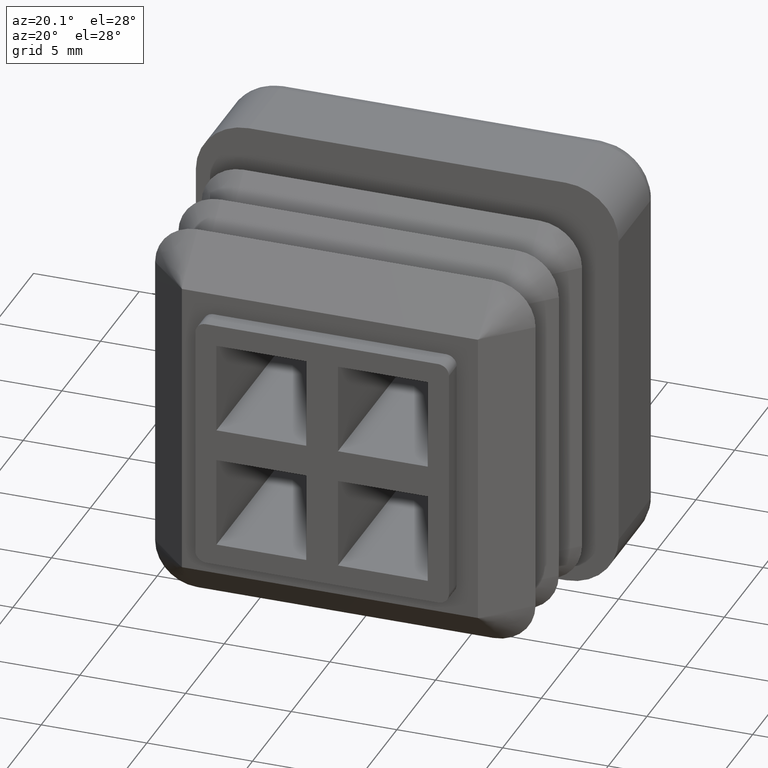
[diagram: clean part render]
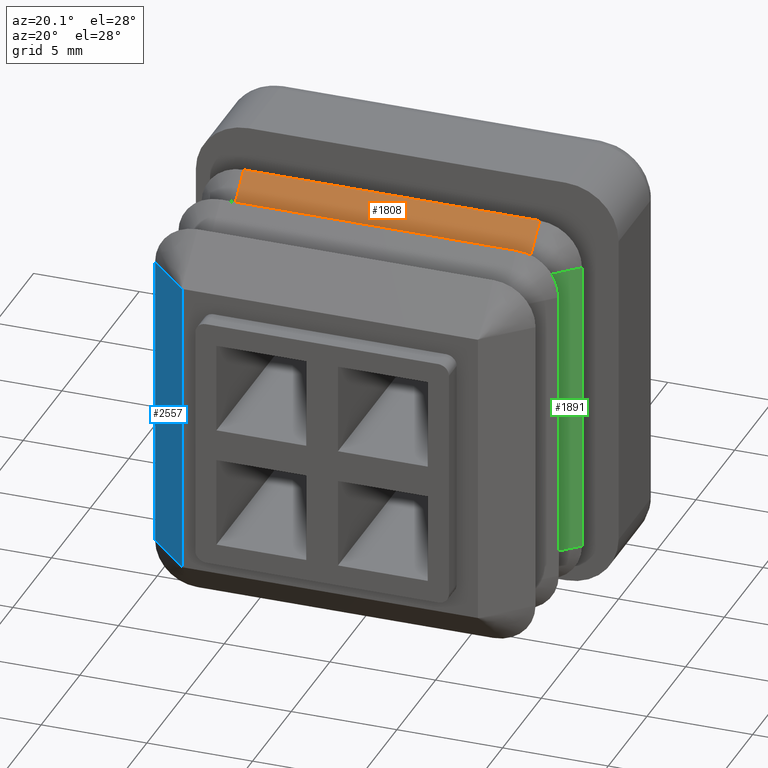
[diagram: same view with three faces highlighted in distinct colors, each labeled with its STEP entity id]
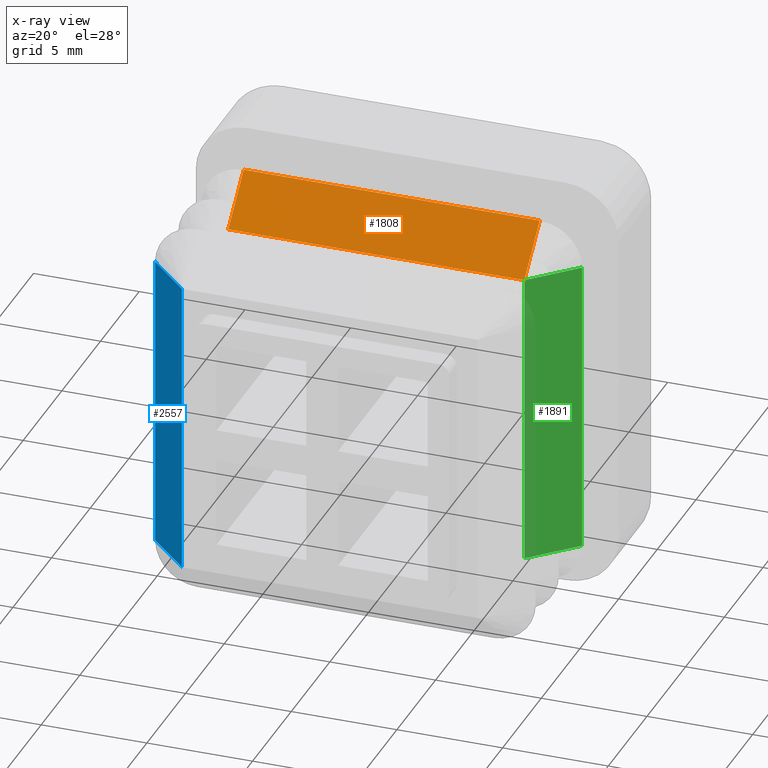
[diagram: x-ray of the same camera — body ghosted, the three highlighted faces saturated]
A machine part, auxiliary view with three faces highlighted in distinct colors.
The next image is the same camera in x-ray (body ghosted, the three faces saturated) — at least one of them is partly hidden behind the body in this view.
Their STEP definitions:

[orange] entity #1808 — the highlighted planar face has unit normal (-0, 0.7071, -0.7071).
#1587=CARTESIAN_POINT('',(-6.999999999999969,-2.0,8.999999999999995));
#1588=VERTEX_POINT('',#1587);
#1596=CARTESIAN_POINT('',(6.999999999999966,-2.0,8.999999999999982));
#1597=VERTEX_POINT('',#1596);
#1598=CARTESIAN_POINT('',(-6.999999999999969,-2.0,8.999999999999995));
#1599=DIRECTION('',(1.0,0.0,0.0));
#1600=VECTOR('',#1599,13.999999999999936);
#1601=LINE('',#1598,#1600);
#1602=EDGE_CURVE('',#1588,#1597,#1601,.T.);
#1681=CARTESIAN_POINT('',(7.000000000000026,-3.999999999999998,6.999999999999997));
#1682=VERTEX_POINT('',#1681);
#1689=CARTESIAN_POINT('',(-6.999999999999992,-4.0,7.000000000000001));
#1690=VERTEX_POINT('',#1689);
#1691=CARTESIAN_POINT('',(7.000000000000031,-4.0,6.999999999999997));
#1692=DIRECTION('',(-1.0,0.0,0.0));
#1693=VECTOR('',#1692,14.000000000000046);
#1694=LINE('',#1691,#1693);
#1695=EDGE_CURVE('',#1682,#1690,#1694,.T.);
#1756=CARTESIAN_POINT('',(-6.999999999999969,-2.000000000000016,9.000000000000011));
#1757=DIRECTION('',(0.0,-0.707106781186543,-0.707106781186552));
#1758=VECTOR('',#1757,2.828427124746185);
#1759=LINE('',#1756,#1758);
#1760=EDGE_CURVE('',#1588,#1690,#1759,.T.);
#1792=CARTESIAN_POINT('',(-7.700000000000017,-4.100000000000001,6.899999999999999));
#1793=DIRECTION('',(-8.761677E-017,0.707106781186548,-0.707106781186547));
#1794=DIRECTION('',(0.0,0.707106781186547,0.707106781186548));
#1795=AXIS2_PLACEMENT_3D('',#1792,#1793,#1794);
#1796=PLANE('',#1795);
#1797=ORIENTED_EDGE('',*,*,#1760,.T.);
#1798=ORIENTED_EDGE('',*,*,#1695,.F.);
#1799=CARTESIAN_POINT('',(6.999999999999966,-2.000000000000011,8.999999999999993));
#1800=DIRECTION('',(2.355139E-014,-0.707106781186547,-0.707106781186548));
#1801=VECTOR('',#1800,2.828427124746180);
#1802=LINE('',#1799,#1801);
#1803=EDGE_CURVE('',#1597,#1682,#1802,.T.);
#1804=ORIENTED_EDGE('',*,*,#1803,.F.);
#1805=ORIENTED_EDGE('',*,*,#1602,.F.);
#1806=EDGE_LOOP('',(#1797,#1798,#1804,#1805));
#1807=FACE_OUTER_BOUND('',#1806,.T.);
#1808=ADVANCED_FACE('',(#1807),#1796,.F.);

[blue] entity #2557 — the highlighted planar face has unit normal (-0.7071, -0.7071, 0).
#2209=CARTESIAN_POINT('',(-8.999999999999995,-8.0,6.999999999999996));
#2210=VERTEX_POINT('',#2209);
#2262=CARTESIAN_POINT('',(-8.999999999999996,-8.0,-6.999999999999997));
#2263=VERTEX_POINT('',#2262);
#2271=CARTESIAN_POINT('',(-8.999999999999995,-8.0,-6.999999999999997));
#2272=DIRECTION('',(0.0,0.0,1.0));
#2273=VECTOR('',#2272,13.999999999999993);
#2274=LINE('',#2271,#2273);
#2275=EDGE_CURVE('',#2263,#2210,#2274,.T.);
#2295=CARTESIAN_POINT('',(-6.999999999999996,-9.999999999999998,-7.0));
#2296=VERTEX_POINT('',#2295);
#2313=CARTESIAN_POINT('',(-6.999999999999996,-9.999999999999998,6.999999999999992));
#2314=VERTEX_POINT('',#2313);
#2321=CARTESIAN_POINT('',(-6.999999999999990,-10.0,6.999999999999996));
#2322=DIRECTION('',(0.0,0.0,-1.0));
#2323=VECTOR('',#2322,13.999999999999998);
#2324=LINE('',#2321,#2323);
#2325=EDGE_CURVE('',#2314,#2296,#2324,.T.);
#2536=CARTESIAN_POINT('',(-9.099999999999993,-7.899999999999997,-7.700000000000002));
#2537=DIRECTION('',(-0.707106781186547,-0.707106781186548,8.761677E-017));
#2538=DIRECTION('',(0.707106781186548,-0.707106781186547,0.0));
#2539=AXIS2_PLACEMENT_3D('',#2536,#2537,#2538);
#2540=PLANE('',#2539);
#2541=CARTESIAN_POINT('',(-8.999999999999991,-7.999999999999997,6.999999999999996));
#2542=DIRECTION('',(0.707106781186548,-0.707106781186547,-3.140185E-016));
#2543=VECTOR('',#2542,2.828427124746196);
#2544=LINE('',#2541,#2543);
#2545=EDGE_CURVE('',#2210,#2314,#2544,.T.);
#2546=ORIENTED_EDGE('',*,*,#2545,.F.);
#2547=ORIENTED_EDGE('',*,*,#2275,.F.);
#2548=CARTESIAN_POINT('',(-6.999999999999990,-10.0,-7.000000000000003));
#2549=DIRECTION('',(-0.707106781186548,0.707106781186547,1.570092E-015));
#2550=VECTOR('',#2549,2.828427124746196);
#2551=LINE('',#2548,#2550);
#2552=EDGE_CURVE('',#2296,#2263,#2551,.T.);
#2553=ORIENTED_EDGE('',*,*,#2552,.F.);
#2554=ORIENTED_EDGE('',*,*,#2325,.F.);
#2555=EDGE_LOOP('',(#2546,#2547,#2553,#2554));
#2556=FACE_OUTER_BOUND('',#2555,.T.);
#2557=ADVANCED_FACE('',(#2556),#2540,.T.);

[green] entity #1891 — the highlighted planar face has unit normal (-0.7071, 0.7071, 0).
#1604=CARTESIAN_POINT('',(9.000000000000004,-2.0,6.999999999999997));
#1605=VERTEX_POINT('',#1604);
#1613=CARTESIAN_POINT('',(9.000000000000004,-2.0,-7.000000000000009));
#1614=VERTEX_POINT('',#1613);
#1615=CARTESIAN_POINT('',(9.000000000000004,-2.0,6.999999999999997));
#1616=DIRECTION('',(0.0,0.0,-1.0));
#1617=VECTOR('',#1616,14.000000000000007);
#1618=LINE('',#1615,#1617);
#1619=EDGE_CURVE('',#1605,#1614,#1618,.T.);
#1673=CARTESIAN_POINT('',(7.000000000000010,-4.0,-7.000000000000007));
#1674=VERTEX_POINT('',#1673);
#1681=CARTESIAN_POINT('',(7.000000000000026,-3.999999999999998,6.999999999999997));
#1682=VERTEX_POINT('',#1681);
#1683=CARTESIAN_POINT('',(7.000000000000009,-4.0,-7.000000000000008));
#1684=DIRECTION('',(0.0,0.0,1.0));
#1685=VECTOR('',#1684,14.000000000000005);
#1686=LINE('',#1683,#1685);
#1687=EDGE_CURVE('',#1674,#1682,#1686,.T.);
#1844=CARTESIAN_POINT('',(9.000000000000011,-2.000000000000008,6.999999999999997));
#1845=DIRECTION('',(-0.707106781186550,-0.707106781186545,0.0));
#1846=VECTOR('',#1845,2.828427124746170);
#1847=LINE('',#1844,#1846);
#1848=EDGE_CURVE('',#1605,#1682,#1847,.T.);
#1871=CARTESIAN_POINT('',(7.000000000000010,-4.000000000000000,-7.000000000000009));
#1872=DIRECTION('',(0.707106781186549,0.707106781186546,0.0));
#1873=VECTOR('',#1872,2.828427124746186);
#1874=LINE('',#1871,#1873);
#1875=EDGE_CURVE('',#1674,#1614,#1874,.T.);
#1880=CARTESIAN_POINT('',(9.100000000000009,-1.900000000000004,-7.700000000000011));
#1881=DIRECTION('',(-0.707106781186547,0.707106781186548,8.761677E-017));
#1882=DIRECTION('',(-0.707106781186548,-0.707106781186547,0.0));
#1883=AXIS2_PLACEMENT_3D('',#1880,#1881,#1882);
#1884=PLANE('',#1883);
#1885=ORIENTED_EDGE('',*,*,#1848,.T.);
#1886=ORIENTED_EDGE('',*,*,#1687,.F.);
#1887=ORIENTED_EDGE('',*,*,#1875,.T.);
#1888=ORIENTED_EDGE('',*,*,#1619,.F.);
#1889=EDGE_LOOP('',(#1885,#1886,#1887,#1888));
#1890=FACE_OUTER_BOUND('',#1889,.T.);
#1891=ADVANCED_FACE('',(#1890),#1884,.F.);